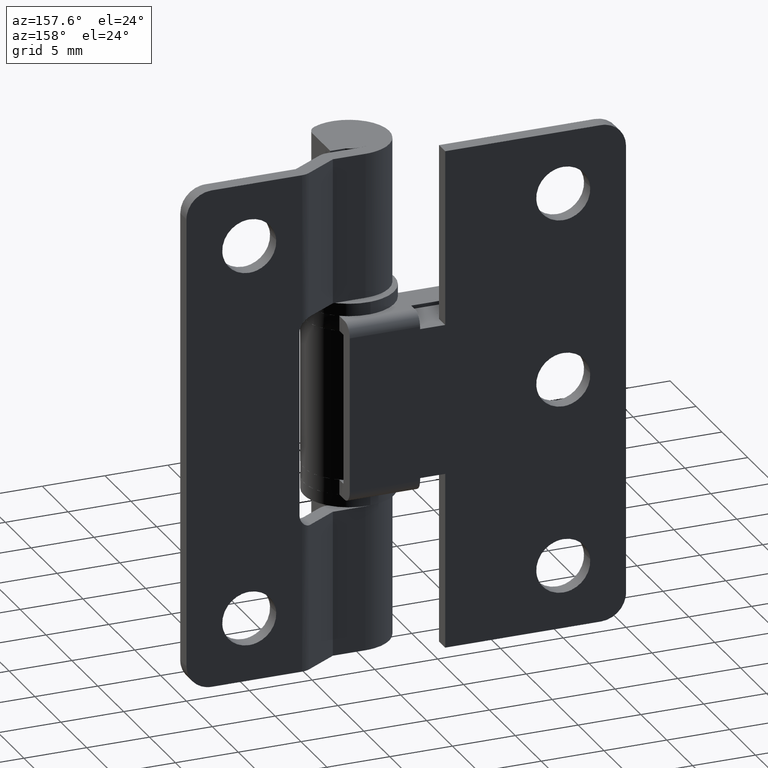
[diagram: clean part render]
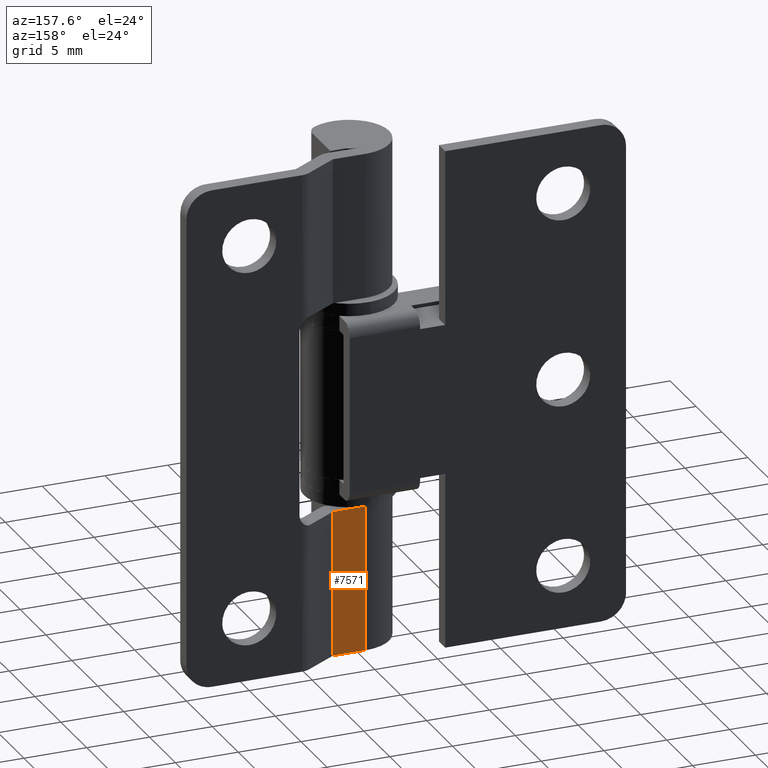
[diagram: same view with one face highlighted and labeled with its STEP entity id]
A machine part, auxiliary view. The second image highlights one B-rep face of the part: STEP entity #7571.
In plain terms, the highlighted face is a freeform B-spline surface patch.
Its self-contained STEP definition (entity closure, byte-faithful):
#7307=CARTESIAN_POINT('',(0.0,3.200000000000000,11.600000000000000));
#7308=VERTEX_POINT('',#7307);
#7309=CARTESIAN_POINT('',(2.600000000000000,3.200000000000000,11.600000000000000));
#7310=VERTEX_POINT('',#7309);
#7311=CARTESIAN_POINT('',(0.0,3.200000000000000,11.600000000000000));
#7312=CARTESIAN_POINT('',(2.600000000000000,3.200000000000000,11.600000000000000));
#7313=QUASI_UNIFORM_CURVE('',1,(#7311,#7312),.UNSPECIFIED.,.F.,.U.);
#7314=EDGE_CURVE('',#7308,#7310,#7313,.T.);
#7469=CARTESIAN_POINT('',(0.0,3.200000000000000,0.0));
#7470=VERTEX_POINT('',#7469);
#7498=CARTESIAN_POINT('',(2.600000000000000,3.200000000000000,0.0));
#7499=VERTEX_POINT('',#7498);
#7500=CARTESIAN_POINT('',(0.0,3.200000000000000,0.0));
#7501=CARTESIAN_POINT('',(2.600000000000000,3.200000000000000,0.0));
#7502=QUASI_UNIFORM_CURVE('',1,(#7500,#7501),.UNSPECIFIED.,.F.,.U.);
#7503=EDGE_CURVE('',#7470,#7499,#7502,.T.);
#7519=CARTESIAN_POINT('',(2.600000000000000,3.200000000000000,0.0));
#7520=CARTESIAN_POINT('',(2.600000000000000,3.200000000000000,11.600000000000000));
#7521=QUASI_UNIFORM_CURVE('',1,(#7519,#7520),.UNSPECIFIED.,.F.,.U.);
#7522=EDGE_CURVE('',#7499,#7310,#7521,.T.);
#7556=CARTESIAN_POINT('',(-0.129869994960696,3.200000000000000,12.179419977516950));
#7557=CARTESIAN_POINT('',(-0.129869994960696,3.200000000000000,-0.579420288653195));
#7558=CARTESIAN_POINT('',(2.729870064698130,3.200000000000000,12.179419977516950));
#7559=CARTESIAN_POINT('',(2.729870064698130,3.200000000000000,-0.579420288653195));
#7560=B_SPLINE_SURFACE_WITH_KNOTS('',1,1,((#7556,#7558),(#7557,#7559)),.UNSPECIFIED.,.F.,.F.,.U.,(2,2),(2,2),(0.0,12.758840266170150),(0.0,2.859740059658825),.UNSPECIFIED.);
#7561=CARTESIAN_POINT('',(0.0,3.200000000000000,0.0));
#7562=CARTESIAN_POINT('',(0.0,3.200000000000000,11.600000000000000));
#7563=QUASI_UNIFORM_CURVE('',1,(#7561,#7562),.UNSPECIFIED.,.F.,.U.);
#7564=EDGE_CURVE('',#7470,#7308,#7563,.T.);
#7565=ORIENTED_EDGE('',*,*,#7564,.T.);
#7566=ORIENTED_EDGE('',*,*,#7314,.T.);
#7567=ORIENTED_EDGE('',*,*,#7522,.F.);
#7568=ORIENTED_EDGE('',*,*,#7503,.F.);
#7569=EDGE_LOOP('',(#7565,#7566,#7567,#7568));
#7570=FACE_OUTER_BOUND('',#7569,.T.);
#7571=ADVANCED_FACE('',(#7570),#7560,.F.);